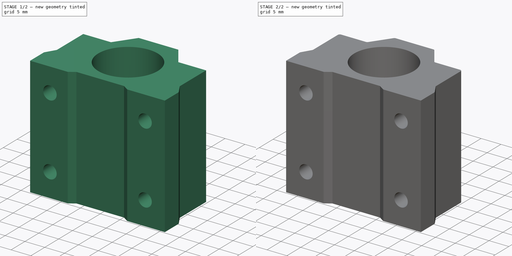
[diagram: build sequence overview — one tinted view per stage of 2, left to right]
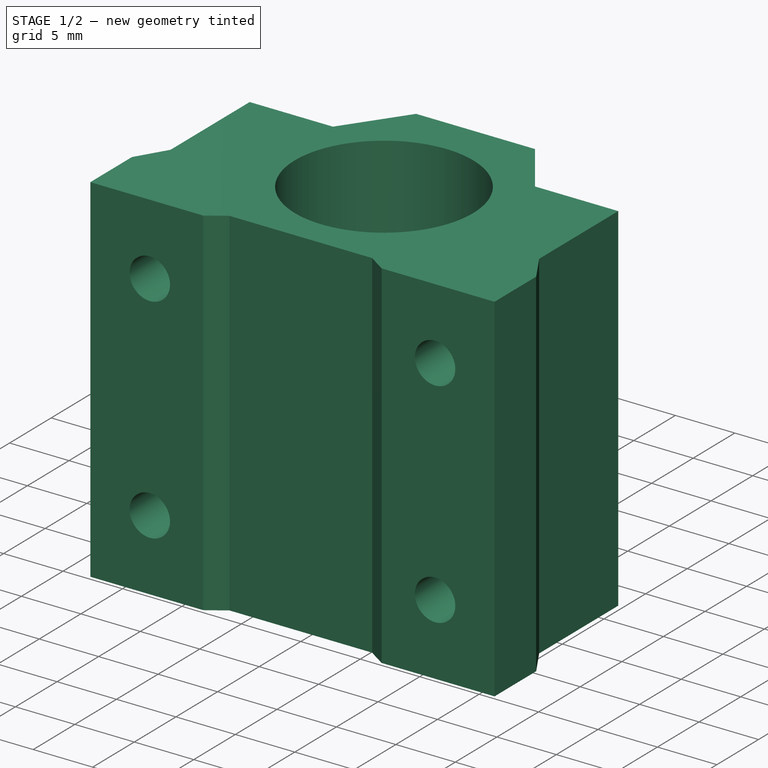
[diagram: stage 1 of 2 — iso view after this stage's code; geometry added in this stage tinted green]
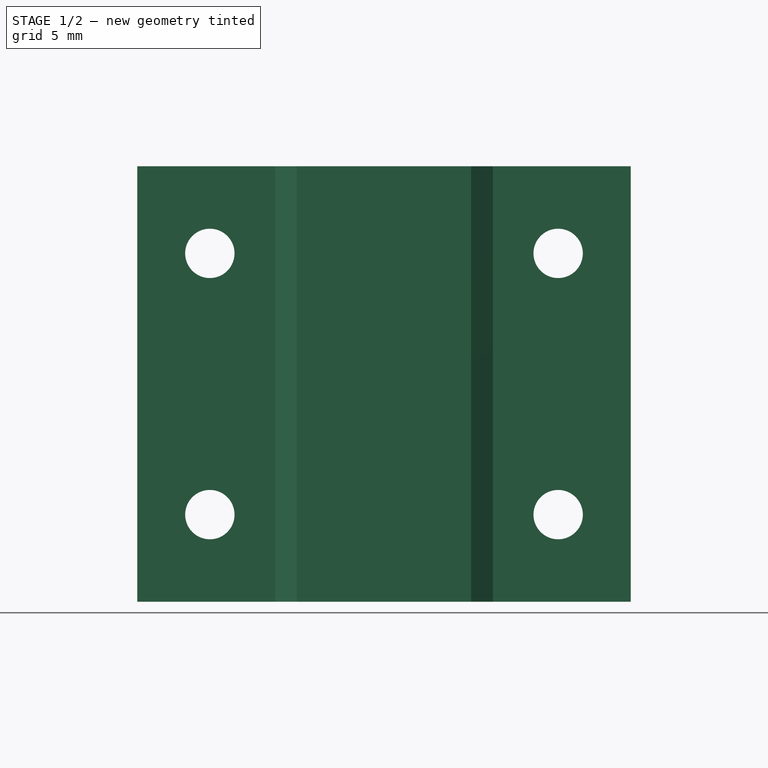
[diagram: stage 1 of 2 — front view after this stage's code; geometry added in this stage tinted green]
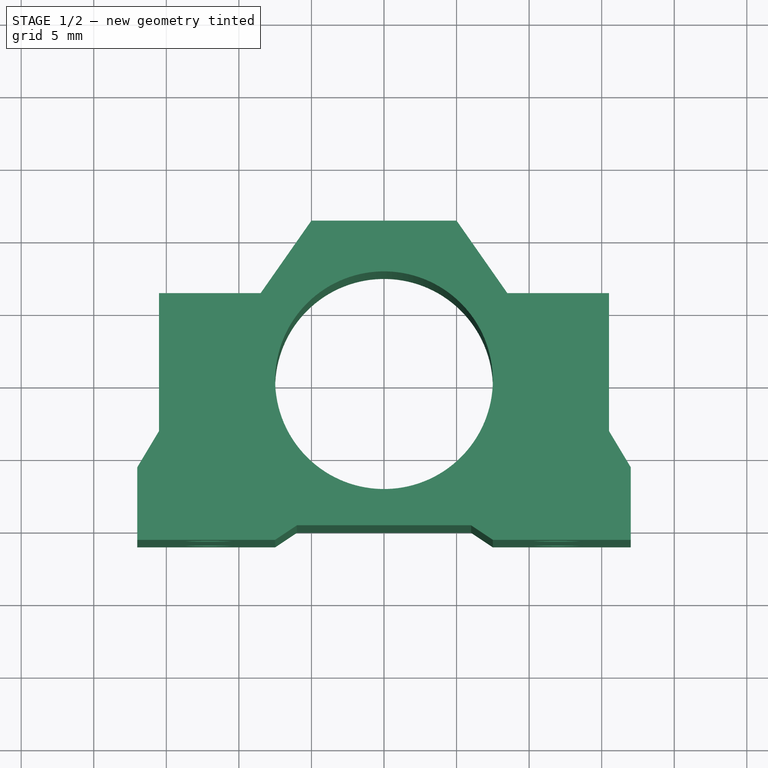
[diagram: stage 1 of 2 — top view after this stage's code; geometry added in this stage tinted green]
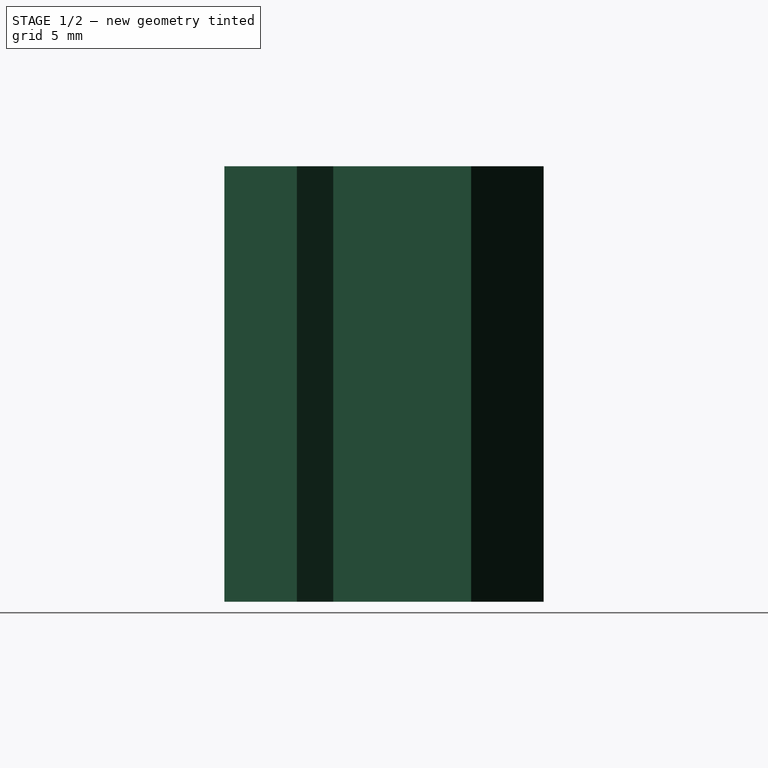
[diagram: stage 1 of 2 — right view after this stage's code; geometry added in this stage tinted green]
FCSTD DOCUMENT  (FreeCAD 0.19R21938 (Git))
Label: pillow-block-cs8uu
License: All rights reserved
LicenseURL: http://en.wikipedia.org/wiki/All_rights_reserved
objects: Sketcher::SketchObject×2, PartDesign::Pad×1, PartDesign::Pocket×1, PartDesign::Fillet×1, PartDesign::Body×1
note: 9 computed .brp shape members not serialized (recipe doc carries the construction recipe); baked Part::Feature solids carry a one-line shape summary decoded from their .brp

FEATURE [Sketcher::SketchObject] Sketch
  MapMode = 5
  Support = -> [XY_Plane]
  sketch-geometry (19):
    g0: LineSegment StartX=7.5 StartY=-11 StartZ=0 EndX=17 EndY=-11 EndZ=0
    g1: LineSegment StartX=-17 StartY=-11 StartZ=0 EndX=-7.5 EndY=-11 EndZ=0
    g2: LineSegment StartX=-5 StartY=11 StartZ=0 EndX=0 EndY=11 EndZ=0
    g3: LineSegment StartX=0 StartY=11 StartZ=0 EndX=5 EndY=11 EndZ=0
    g4: LineSegment StartX=-15.5 StartY=6 StartZ=0 EndX=-8.5 EndY=6 EndZ=0
    g5: LineSegment StartX=8.5 StartY=6 StartZ=0 EndX=15.5 EndY=6 EndZ=0
    g6: LineSegment StartX=-8.5 StartY=6 StartZ=0 EndX=-5 EndY=11 EndZ=0
    g7: LineSegment StartX=5 StartY=11 StartZ=0 EndX=8.5 EndY=6 EndZ=0
    g8: LineSegment StartX=-15.5 StartY=6 StartZ=0 EndX=-15.5 EndY=-3.5 EndZ=0
    g9: LineSegment StartX=15.5 StartY=6 StartZ=0 EndX=15.5 EndY=-3.5 EndZ=0
    g10: LineSegment StartX=-17 StartY=-6 StartZ=0 EndX=-17 EndY=-11 EndZ=0
    g11: LineSegment StartX=17 StartY=-11 StartZ=0 EndX=17 EndY=-6 EndZ=0
    g12: LineSegment StartX=-15.5 StartY=-3.5 StartZ=0 EndX=-17 EndY=-6 EndZ=0
    g13: LineSegment StartX=15.5 StartY=-3.5 StartZ=0 EndX=17 EndY=-6 EndZ=0
    g14: LineSegment StartX=-6 StartY=-10 StartZ=0 EndX=0 EndY=-10 EndZ=0
    g15: LineSegment StartX=0 StartY=-10 StartZ=0 EndX=6 EndY=-10 EndZ=0
    g16: LineSegment StartX=-7.5 StartY=-11 StartZ=0 EndX=-6 EndY=-10 EndZ=0
    g17: LineSegment StartX=6 StartY=-10 StartZ=0 EndX=7.5 EndY=-11 EndZ=0
    g18: Circle CenterX=0 CenterY=0 CenterZ=0 NormalX=0 NormalY=0 NormalZ=1 AngleXU=0 Radius=7.5
  constraints (56):
    c: Horizontal(g0)
    c: Horizontal(g1)
    c: DistanceY(g1,g0) = 0
    c: PointOnObject(g2,g-2)
    c: Horizontal(g2)
    c: Coincident(g3,g2)
    c: Horizontal(g3)
    c: DistanceY(g0,g3) = 22
    c: DistanceY(g-1,g2) = 11
    c: DistanceX(g2,g2) = 5
    c: Equal(g3,g2)
    c: Horizontal(g4)
    c: Horizontal(g5)
    c: DistanceX(g4,g-1) = 8.5
    c: DistanceX(g-1,g5) = 8.5
    c: DistanceY(g5,g4) = 0
    c: Equal(g5,g4)
    c: DistanceX(g4,g-1) = 15.5
    c: Coincident(g6,g4)
    c: Coincident(g6,g2)
    c: Coincident(g7,g3)
    c: Coincident(g7,g5)
    c: DistanceY(g4,g2) = 5
    c: Coincident(g8,g4)
    c: Vertical(g8)
    c: Coincident(g9,g5)
    c: Vertical(g9)
    c: Vertical(g10)
    c: Coincident(g1,g10)
    c: Coincident(g11,g0)
    c: Vertical(g11)
    c: DistanceX(g1,g-1) = 17
    c: DistanceY(g8,g8) = 9.5
    c: Equal(g9,g8)
    c: Coincident(g12,g8)
    c: Coincident(g12,g10)
    c: Coincident(g13,g9)
    c: Coincident(g13,g11)
    c: DistanceX(g-1,g0) = 17
    c: DistanceY(g10,g10) = 5
    c: Equal(g11,g10)
    c: PointOnObject(g14,g-2)
    c: Horizontal(g14)
    c: Horizontal(g15)
    c: Equal(g15,g14)
    c: DistanceX(g14,g14) = 6
    c: Coincident(g14,g15)
    c: Coincident(g16,g1)
    c: Coincident(g16,g14)
    c: Coincident(g17,g15)
    c: Coincident(g17,g0)
    c: DistanceX(g1,g1) = 9.5
    c: Equal(g0,g1)
    c: DistanceY(g14,g2) = 21
    c: Coincident(g18,g-1)
    c: Diameter(g18) = 15
FEATURE [PartDesign::Pad] Pad
  AllowMultiFace = false
  Length = 30
  Length2 = 100
  Profile = -> Sketch
  Type = 0
FEATURE [Sketcher::SketchObject] Sketch001
  AttachmentOffset = pos=(0,0,-50) rot=(0,0,1;0rad)
  MapMode = 5
  Placement = pos=(0,50,1.11e-14) rot=(1,0,0;1.5708rad)
  Support = -> [XZ_Plane]
  sketch-geometry (5):
    g0: GeomPoint X=0 Y=15 Z=0
    g1: Circle CenterX=-12 CenterY=24 CenterZ=0 NormalX=0 NormalY=0 NormalZ=1 AngleXU=0 Radius=1.7
    g2: Circle CenterX=12 CenterY=24 CenterZ=0 NormalX=0 NormalY=0 NormalZ=1 AngleXU=0 Radius=1.7
    g3: Circle CenterX=-12 CenterY=6 CenterZ=0 NormalX=0 NormalY=0 NormalZ=1 AngleXU=0 Radius=1.7
    g4: Circle CenterX=12 CenterY=6 CenterZ=0 NormalX=0 NormalY=0 NormalZ=1 AngleXU=0 Radius=1.7
  constraints (14):
    c: PointOnObject(g0,g-2)
    c: DistanceY(g-1,g0) = 15
    c: DistanceX(g3,g1) = 0
    c: DistanceX(g4,g2) = 0
    c: DistanceY(g1,g2) = 0
    c: DistanceY(g4,g3) = 0
    c: Diameter(g1) = 3.4
    c: Equal(g3,g1)
    c: Equal(g2,g1)
    c: Equal(g4,g1)
    c: DistanceY(g3,g1) = 18
    c: DistanceX(g1,g2) = 24
    c: DistanceY(g0,g1) = 9
    c: DistanceX(g1,g0) = 12
FEATURE [PartDesign::Pocket] Pocket
  AllowMultiFace = false
  BaseFeature = -> Pad
  Length = 5
  Length2 = 100
  Profile = -> Sketch001
  Reversed = true
  Type = 1
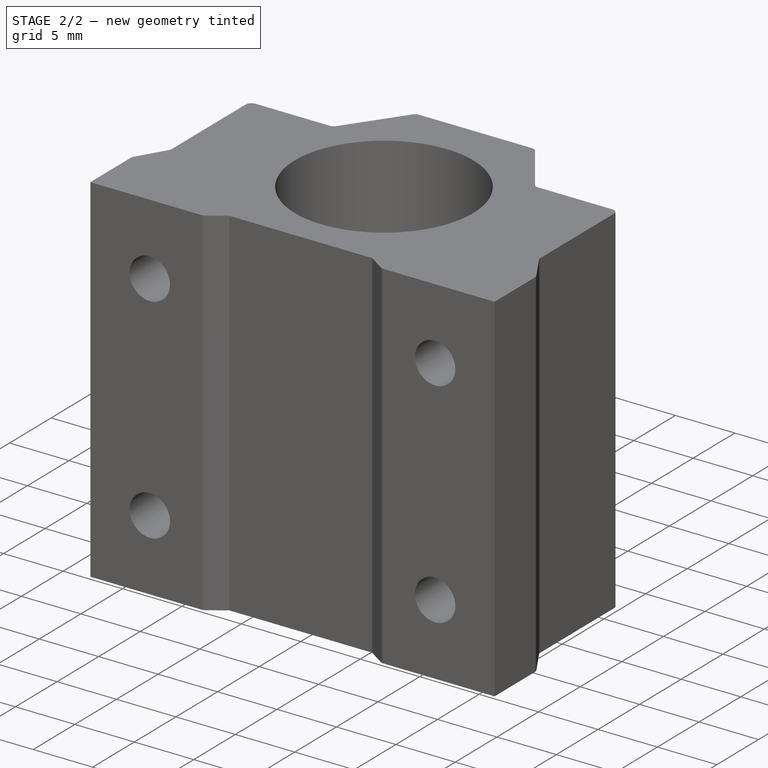
[diagram: stage 2 of 2 — iso view after this stage's code; geometry added in this stage tinted green]
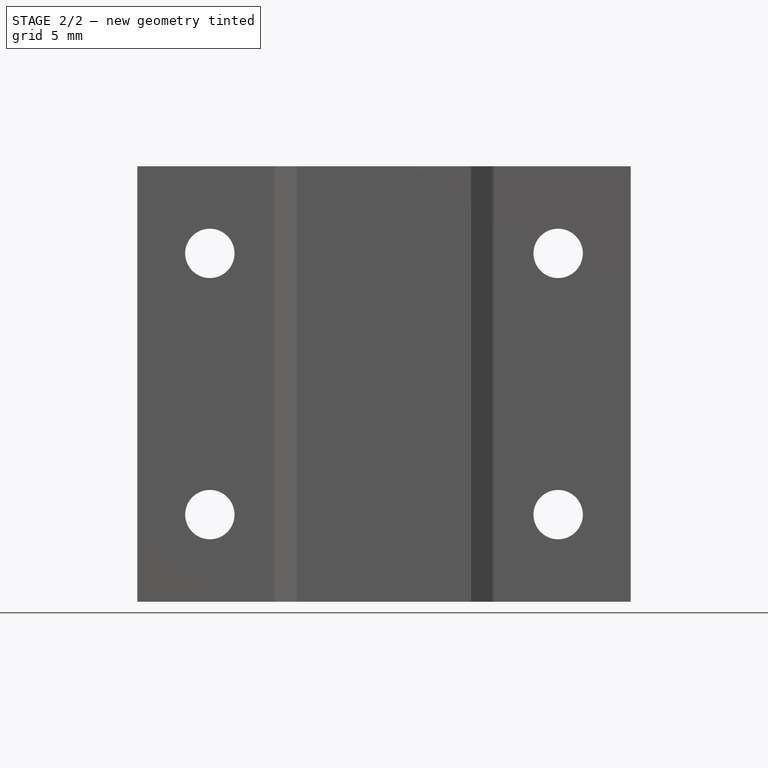
[diagram: stage 2 of 2 — front view after this stage's code; geometry added in this stage tinted green]
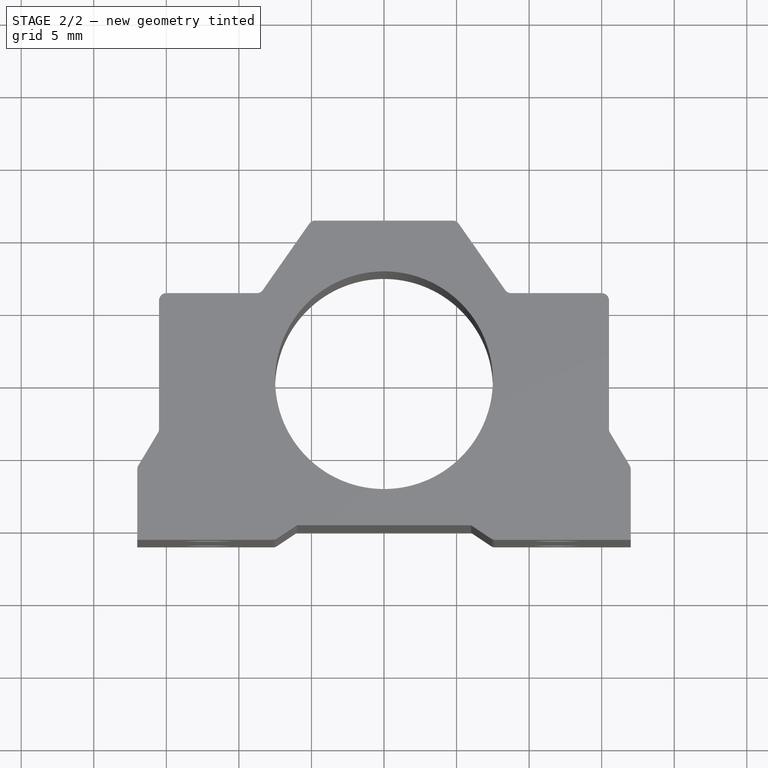
[diagram: stage 2 of 2 — top view after this stage's code; geometry added in this stage tinted green]
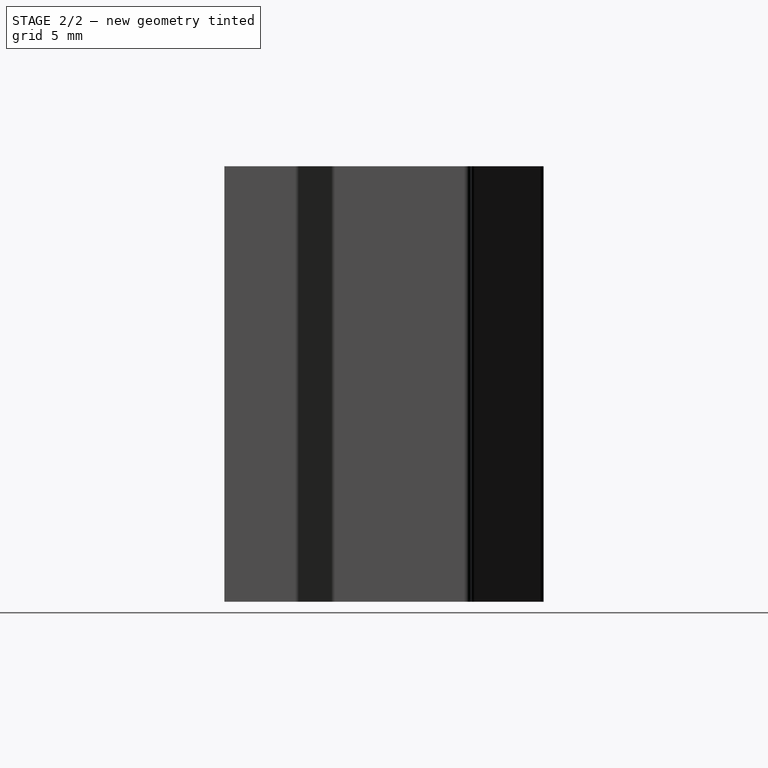
[diagram: stage 2 of 2 — right view after this stage's code; geometry added in this stage tinted green]
FEATURE [PartDesign::Fillet] Fillet
  Base = -> Pocket [Edge45,Edge65,Edge1,Edge10,Edge61,Edge59,Edge51,Edge55,Edge7,Edge62,Edge2,Edge60]
  BaseFeature = -> Pocket
  Radius = 0.5
  SupportTransform = false
FEATURE [PartDesign::Body] Body  label="pillow-block-cs8uu"
  Group = -> [Sketch,Pad,Sketch001,Pocket,Fillet]
  Origin = -> Origin
  Tip = -> Fillet
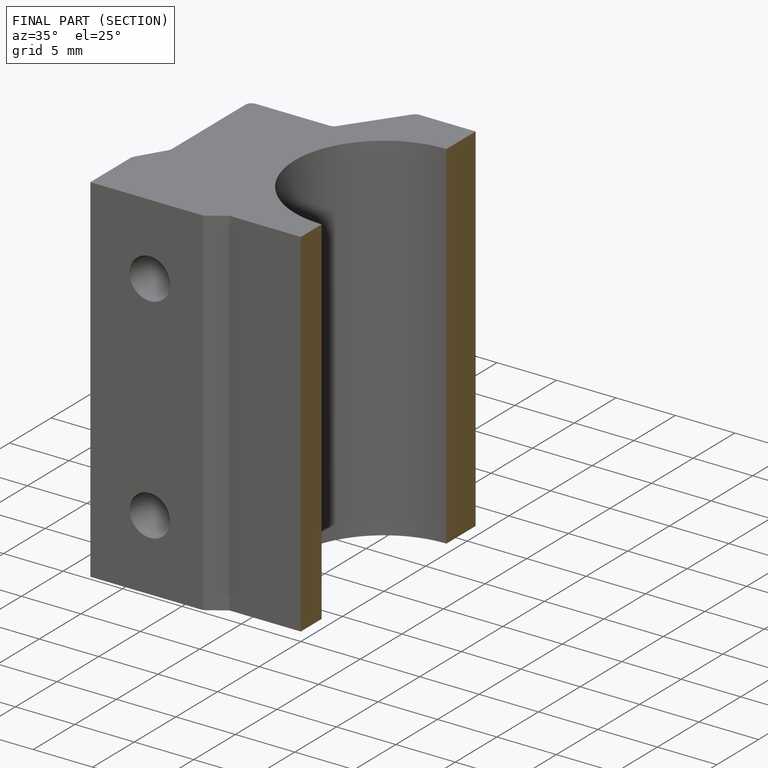
[diagram: finished part — half-section view (interior)]
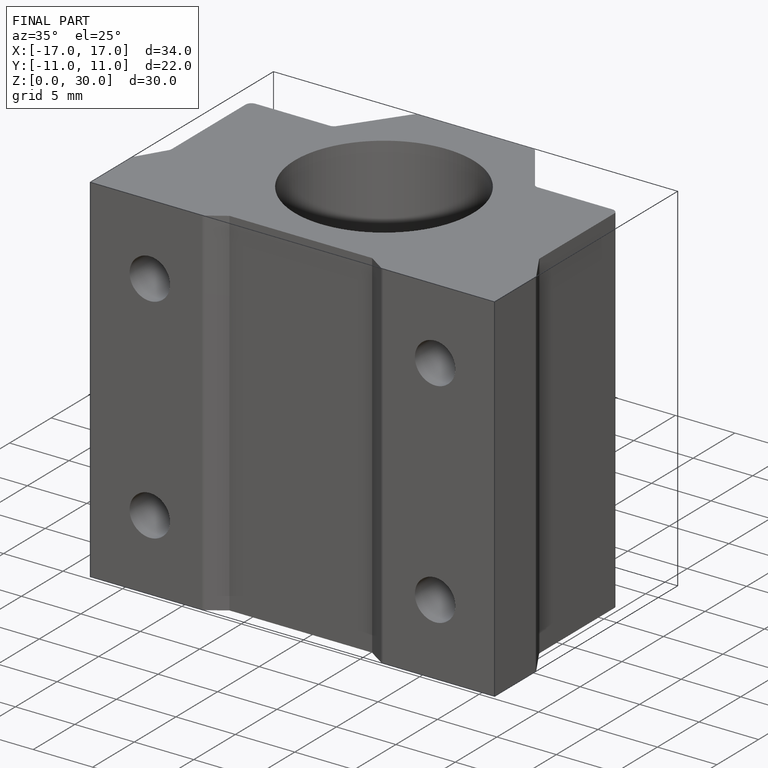
[diagram: finished part — iso view with bounding-box wireframe]
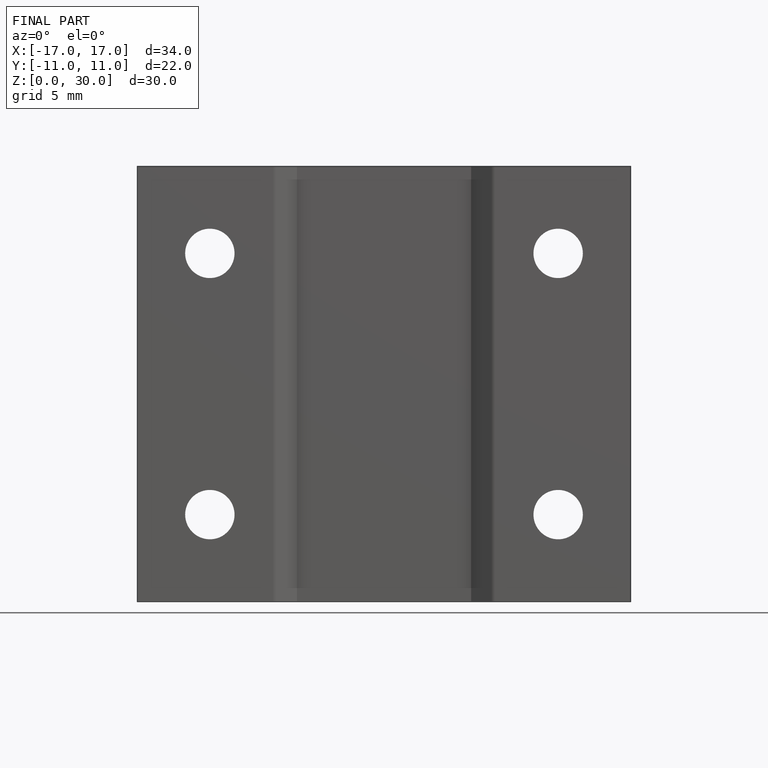
[diagram: finished part — front view with bounding-box wireframe]
